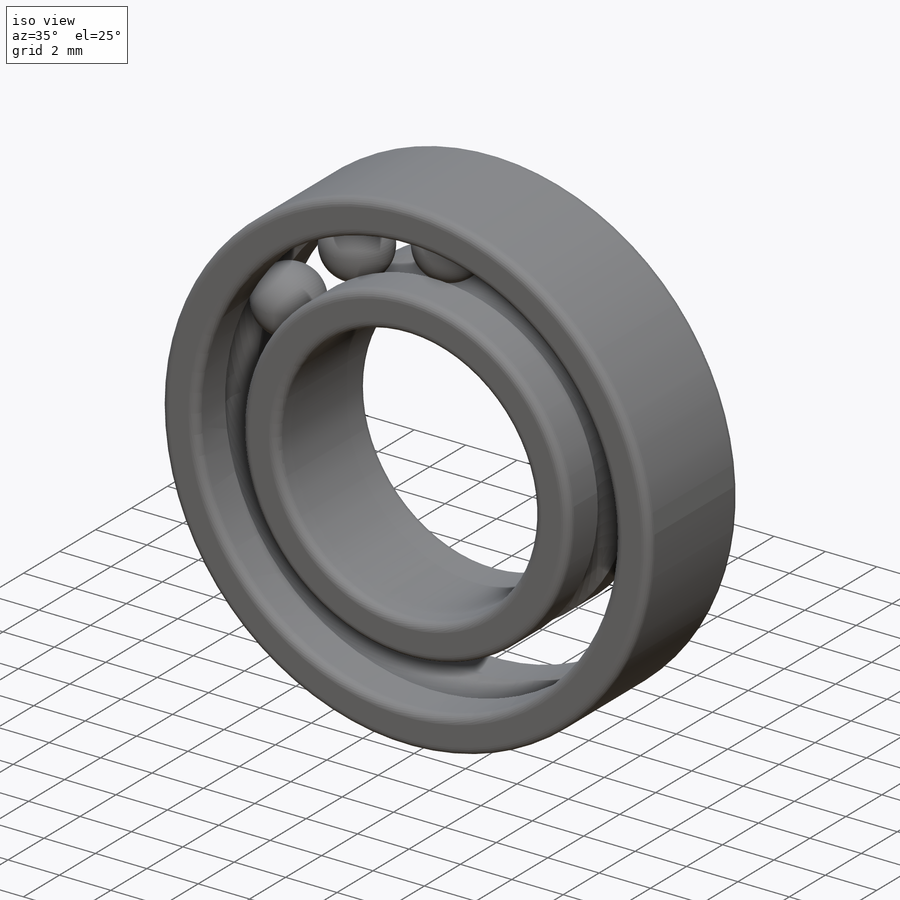
[diagram: iso view]
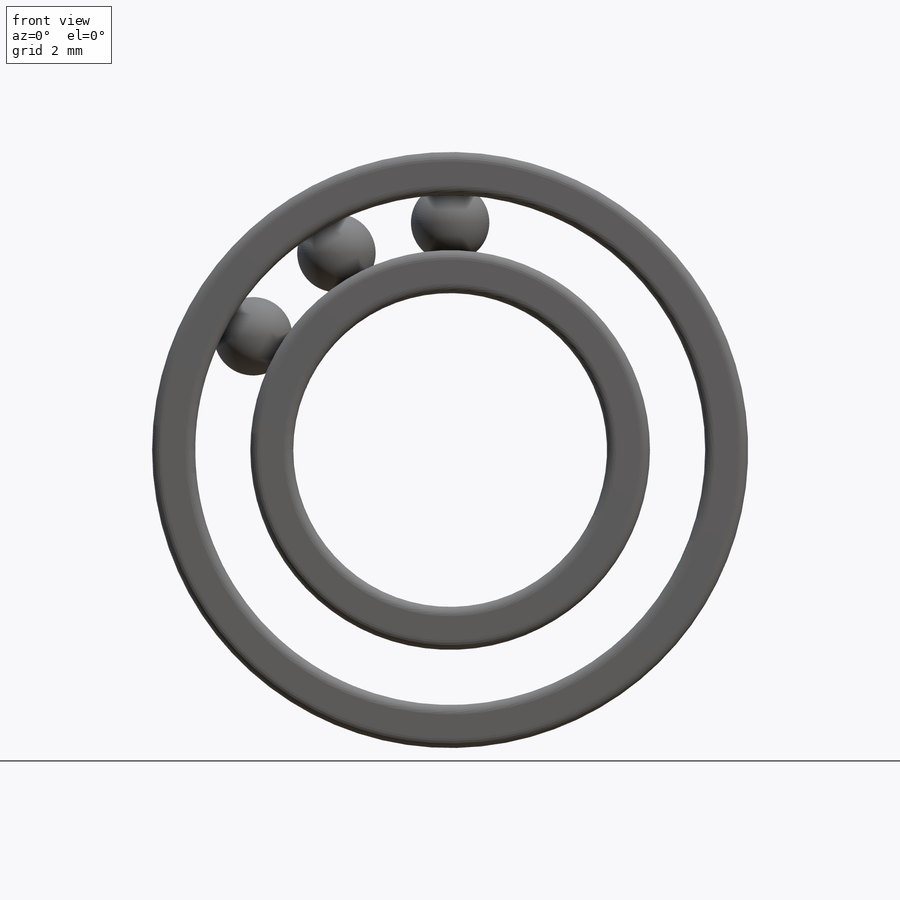
[diagram: front view]
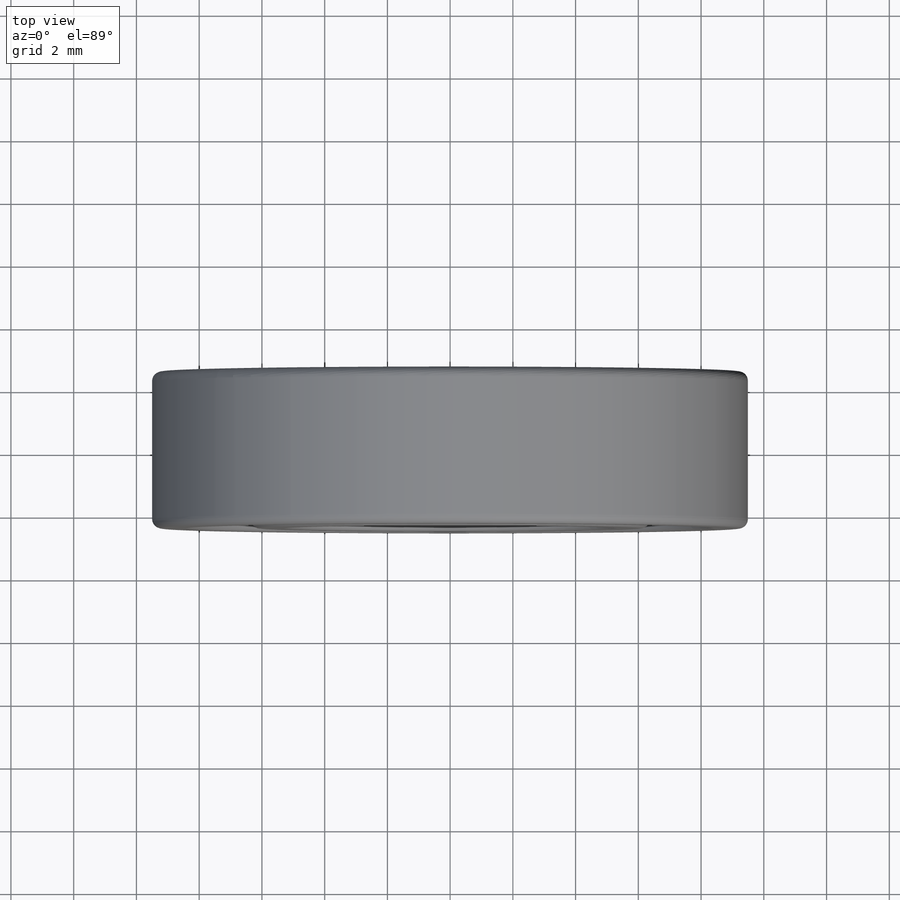
[diagram: top view]
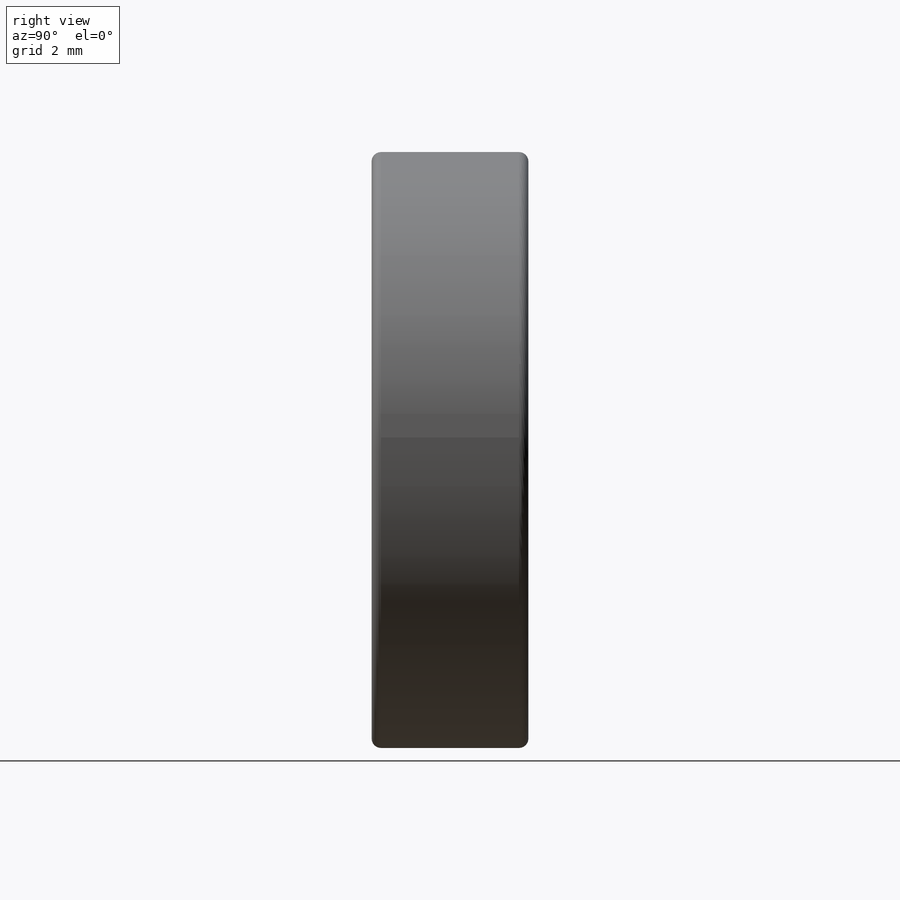
[diagram: right view]
SOLIDWORKS PART (.sldprt)
format: sldprt  version: not decoded by parser v0  size: 975,872 bytes
history: native  units: mm
features: plane x3, sketch x2, revolve x2, fillet x2, material x1, pattern_circular x1 (+9 scaffold rows collapsed)
feature tree (20):
  scaffold x9  (default folders/planes/origin — collapsed)
  material  "Legierter Stahl"
  plane  "Ebene vorne"
  plane  "Ebene oben"
  plane  "Ebene rechts"
  sketch  "Skizze1"  dims[c1.D1=~9.55895mm c1.D6=2.5mm c2.D1=10.0mm c2.D2=19.0mm c2.D3=5.0mm c2.D4=12.74mm c2.D5=16.26mm c2.D7=~0.734407mm]
  revolve  "Rotation1"  Angle=360deg
  revolve  "Rotation3"  [1 undecoded]
  sketch  "Skizze1<5>"  dims[D1=360.0deg]
  pattern_circular  "Kreismuster4"  Count=12 Angle=360deg
  fillet  "Verrundung1"  Radius=0.3mm
  fillet  "Verrundung2"  Radius=0.3mm
decode coverage: 6 of 7 modeling features carry decoded parameters
note: ~ marks probable driven/reference dimensions
note: 1 parameter value undecoded
note: suppression state not decoded; provenance and decode notes live in map.json
